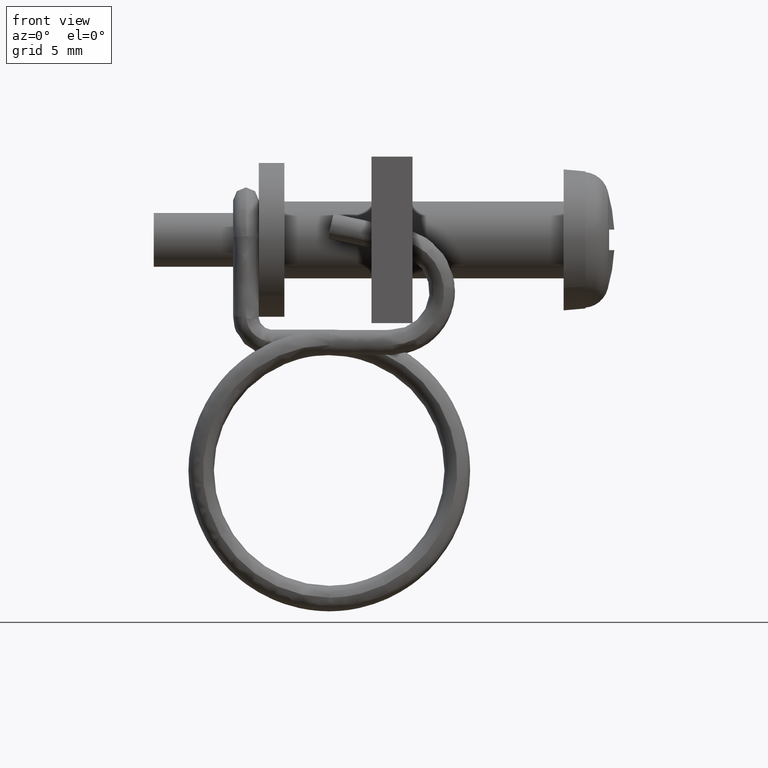
[diagram: clean part render]
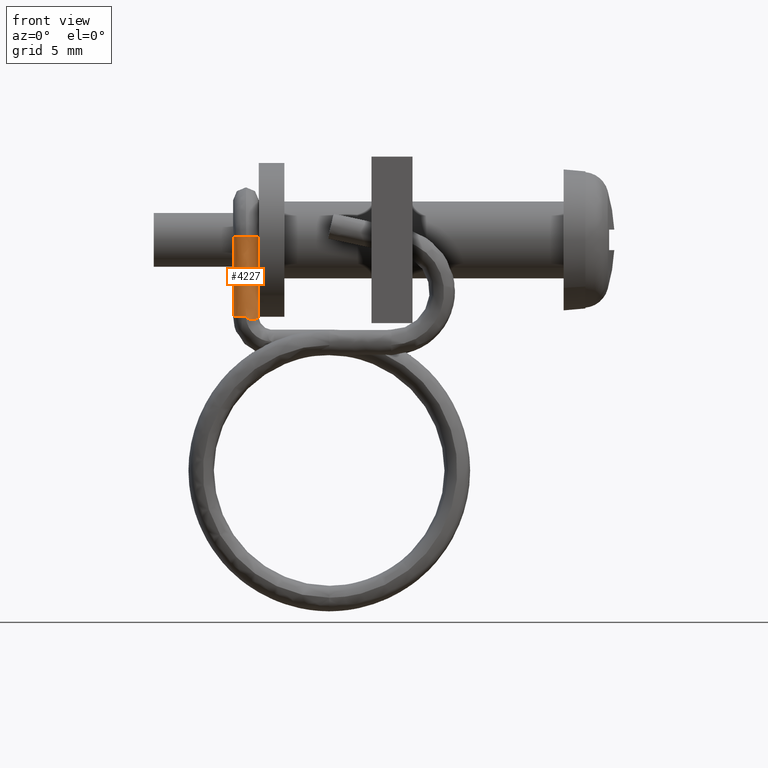
[diagram: same view with one face highlighted and labeled with its STEP entity id]
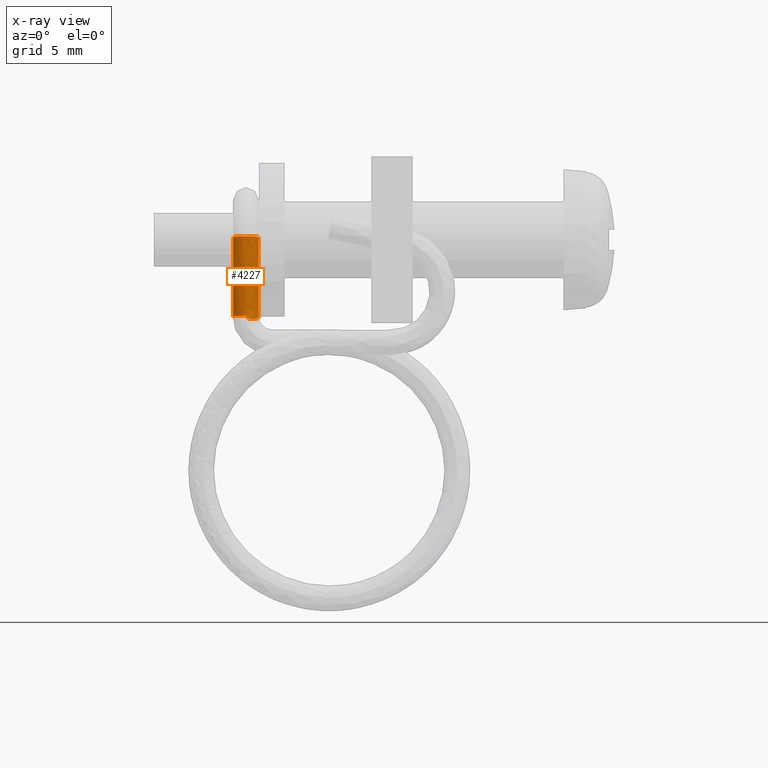
[diagram: x-ray of the same camera — body ghosted, the highlighted face saturated]
A machine part, front view. The second image highlights one B-rep face of the part: STEP entity #4227.
The next image is the same camera in x-ray: the body ghosted, the highlighted face saturated — about 0% of this face is hidden behind the body in this view.
In plain terms, the highlighted face is a freeform B-spline surface patch.
Its self-contained STEP definition (entity closure, byte-faithful):
#3990=CARTESIAN_POINT('',(-12.400000000000061,-2.255212590016138,-2.966274765721647));
#3991=VERTEX_POINT('',#3990);
#3999=CARTESIAN_POINT('',(-12.898428017469801,-1.717213680971814,-3.002645874914204));
#4000=VERTEX_POINT('',#3999);
#4001=CARTESIAN_POINT('',(-12.898428017469801,-1.717213680971814,-3.002645874914204));
#4002=CARTESIAN_POINT('',(-12.899490998307670,-1.730226238667459,-3.001766168377877));
#4003=CARTESIAN_POINT('',(-12.900029903140069,-1.743283533527045,-3.000883437411115));
#4004=CARTESIAN_POINT('',(-12.900025487912320,-1.886950790790790,-2.991170894479352));
#4005=CARTESIAN_POINT('',(-12.846133423544600,-2.016748602856648,-2.982395987474451));
#4006=CARTESIAN_POINT('',(-12.661002378437400,-2.201448025655147,-2.969909488410095));
#4007=CARTESIAN_POINT('',(-12.530903403704080,-2.255212288239596,-2.966274786123078));
#4008=CARTESIAN_POINT('',(-12.400000000000061,-2.255212590016138,-2.966274765721647));
#4009=B_SPLINE_CURVE_WITH_KNOTS('',3,(#4001,#4002,#4003,#4004,#4005,#4006,#4007,#4008),.UNSPECIFIED.,.F.,.U.,(4,2,2,4),(0.737495067605086,0.750000000000000,0.875000000000000,1.0),.UNSPECIFIED.);
#4010=EDGE_CURVE('',#4000,#3991,#4009,.T.);
#4058=CARTESIAN_POINT('',(-11.901542327207100,-1.796646695404419,-3.014442898002632));
#4059=VERTEX_POINT('',#4058);
#4112=CARTESIAN_POINT('',(-12.400000000000061,-2.255212590016138,-2.966274765721647));
#4113=CARTESIAN_POINT('',(-12.399559505295059,-2.255264366724075,-2.967250956933395));
#4114=CARTESIAN_POINT('',(-12.398472005521560,-2.255320077089648,-2.968450455974268));
#4115=CARTESIAN_POINT('',(-12.396699739107950,-2.255367138219553,-2.969628760818345));
#4116=CARTESIAN_POINT('',(-12.395427890780249,-2.255408096405551,-2.970614853209979));
#4117=CARTESIAN_POINT('',(-12.393121971098839,-2.255464605705021,-2.972011030906005));
#4118=CARTESIAN_POINT('',(-12.389994344652891,-2.255548690188221,-2.974035702797210));
#4119=CARTESIAN_POINT('',(-12.386865708185940,-2.255616060839329,-2.975832662265289));
#4120=CARTESIAN_POINT('',(-12.384926047135121,-2.255711780945110,-2.977626738496096));
#4121=CARTESIAN_POINT('',(-12.383752593309600,-2.255768088911905,-2.978699702419232));
#4122=CARTESIAN_POINT('',(-12.383163603722730,-2.255859068561584,-2.980086419628931));
#4123=CARTESIAN_POINT('',(-12.383391765640649,-2.255951307747503,-2.981274174550299));
#4124=CARTESIAN_POINT('',(-12.383149202719011,-2.256012284714630,-2.982319238994108));
#4125=CARTESIAN_POINT('',(-12.383042970334690,-2.256099818706835,-2.983659498014770));
#4126=CARTESIAN_POINT('',(-12.382443827748080,-2.256243734482273,-2.986123080126318));
#4127=CARTESIAN_POINT('',(-12.381928605517460,-2.256438729993266,-2.989277496765036));
#4128=CARTESIAN_POINT('',(-12.380786612259540,-2.256672404807315,-2.993385369518880));
#4129=CARTESIAN_POINT('',(-12.379817148647181,-2.256839988547037,-2.996430004235559));
#4130=CARTESIAN_POINT('',(-12.377783786132751,-2.256969030955309,-2.999582523007287));
#4131=CARTESIAN_POINT('',(-12.377187128281060,-2.257125925519575,-3.002181191150774));
#4132=CARTESIAN_POINT('',(-12.376440751363409,-2.257303847049613,-3.005276020464194));
#4133=CARTESIAN_POINT('',(-12.375200583587370,-2.257641473782988,-3.010963517340380));
#4134=CARTESIAN_POINT('',(-12.372741498670290,-2.257907022173704,-3.017027082810682));
#4135=CARTESIAN_POINT('',(-12.368189848699799,-2.257937027339775,-3.021609255604349));
#4136=CARTESIAN_POINT('',(-12.364229755358680,-2.257934649743609,-3.025164136022330));
#4137=CARTESIAN_POINT('',(-12.360908342452401,-2.257985643810908,-3.029339654955081));
#4138=CARTESIAN_POINT('',(-12.356879866463441,-2.257979281455772,-3.034298375425776));
#4139=CARTESIAN_POINT('',(-12.351619415402990,-2.258007110705806,-3.040952271562277));
#4140=CARTESIAN_POINT('',(-12.345649421639999,-2.257775704296158,-3.047157926415793));
#4141=CARTESIAN_POINT('',(-12.338452191831710,-2.257190220648363,-3.051721386548776));
#4142=CARTESIAN_POINT('',(-12.329673649174270,-2.256297222648826,-3.055474221500500));
#4143=CARTESIAN_POINT('',(-12.320402381105490,-2.255214481627882,-3.060610137107141));
#4144=CARTESIAN_POINT('',(-12.307465013355159,-2.253482705754498,-3.067755778889889));
#4145=CARTESIAN_POINT('',(-12.298128580885940,-2.251943642309179,-3.072677652936332));
#4146=CARTESIAN_POINT('',(-12.274676886653010,-2.247312533393274,-3.081686189598646));
#4147=CARTESIAN_POINT('',(-12.228847011431760,-2.235373882530940,-3.094741503872013));
#4148=CARTESIAN_POINT('',(-12.181791994650920,-2.215177920448990,-3.100215187130627));
#4149=CARTESIAN_POINT('',(-12.126227302656620,-2.183833971101977,-3.102148916061165));
#4150=CARTESIAN_POINT('',(-12.053227499221780,-2.131451288539396,-3.098679724799900));
#4151=CARTESIAN_POINT('',(-11.996135899501800,-2.062584611353187,-3.083609700357973));
#4152=CARTESIAN_POINT('',(-11.944306018176849,-1.972254367216960,-3.061962361514168));
#4153=CARTESIAN_POINT('',(-11.918528333330130,-1.906176904501774,-3.044812135326338));
#4154=CARTESIAN_POINT('',(-11.905056201410490,-1.833439408050648,-3.024511647602927));
#4155=CARTESIAN_POINT('',(-11.902182716009220,-1.804859386958295,-3.016587991939080));
#4156=CARTESIAN_POINT('',(-11.901542327207100,-1.796646695404419,-3.014442898002632));
#4157=B_SPLINE_CURVE_WITH_KNOTS('',3,(#4112,#4113,#4114,#4115,#4116,#4117,#4118,#4119,#4120,#4121,#4122,#4123,#4124,#4125,#4126,#4127,#4128,#4129,#4130,#4131,#4132,#4133,#4134,#4135,#4136,#4137,#4138,#4139,#4140,#4141,#4142,#4143,#4144,#4145,#4146,#4147,#4148,#4149,#4150,#4151,#4152,#4153,#4154,#4155,#4156),.UNSPECIFIED.,.F.,.U.,(4,1,1,1,1,1,1,1,1,1,1,1,1,1,1,1,1,1,1,1,1,1,1,1,1,1,1,1,1,1,1,1,1,1,1,1,1,1,1,1,1,1,4),(0.000118428472024,0.003284245495574,0.004887371885628,0.006490498275682,0.008110219634176,0.012969383709660,0.017682289365131,0.018888043953855,0.020872467638160,0.022457883264915,0.023197163260060,0.024419085432730,0.025641007605402,0.027237577561724,0.032027287430688,0.035234651909062,0.040044528041917,0.041586098015822,0.046373048083600,0.047971165020449,0.051167398894149,0.063928412611228,0.067119850870279,0.070316035363635,0.079891274619734,0.083085887940729,0.089475114582724,0.105433158121836,0.108624495482898,0.115011669931495,0.134161369556440,0.140544846317212,0.159693558926176,0.166075531709595,0.217143753654655,0.306512506360167,0.319280156940072,0.408644003254431,0.574611656233970,0.587378017073387,0.727809235708906,0.791639010101009,0.817174597876138),.UNSPECIFIED.);
#4158=EDGE_CURVE('',#3991,#4059,#4157,.T.);
#4166=CARTESIAN_POINT('',(-11.900304594884799,-1.788041155908776,-3.210049614143621));
#4167=CARTESIAN_POINT('',(-11.900304594884799,-1.558276237196533,0.188617029466380));
#4168=CARTESIAN_POINT('',(-11.918854231467158,-2.318023292608535,-3.174220474269986));
#4169=CARTESIAN_POINT('',(-11.918854231467163,-2.088258373896293,0.224446169340015));
#4170=CARTESIAN_POINT('',(-12.447922883682560,-2.267195785116568,-3.177656638905078));
#4171=CARTESIAN_POINT('',(-12.447922883682560,-2.037430866404326,0.221010004704923));
#4172=CARTESIAN_POINT('',(-12.976991535897955,-2.216368277624605,-3.181092803540170));
#4173=CARTESIAN_POINT('',(-12.976991535897961,-1.986603358912360,0.217573840069831));
#4174=CARTESIAN_POINT('',(-12.893844162252741,-1.692592031126010,-3.216502397748657));
#4175=CARTESIAN_POINT('',(-12.893844162252750,-1.462827112413764,0.182164245861343));
#4183=(BOUNDED_SURFACE()B_SPLINE_SURFACE(1,2,((#4166,#4168,#4170,#4172,#4174),(#4167,#4169,#4171,#4173,#4175)),.UNSPECIFIED.,.F.,.F.,.U.)B_SPLINE_SURFACE_WITH_KNOTS((2,2),(3,2,3),(0.0,3.406424352933456),(0.0,1.0,2.0),.UNSPECIFIED.)GEOMETRIC_REPRESENTATION_ITEM()RATIONAL_B_SPLINE_SURFACE(((1.0,0.685182990326359,1.0,0.685182990326359,1.0),(1.0,0.685182990326359,1.0,0.685182990326359,1.0)))REPRESENTATION_ITEM('')SURFACE());
#4184=ORIENTED_EDGE('',*,*,#4158,.T.);
#4185=CARTESIAN_POINT('',(-11.901541333137290,-1.585610464731164,0.107191464643700));
#4186=VERTEX_POINT('',#4185);
#4187=CARTESIAN_POINT('',(-11.901541333137290,-1.585610464731164,0.107191464643700));
#4188=CARTESIAN_POINT('',(-11.901542327207100,-1.796646695404419,-3.014442898002632));
#4189=QUASI_UNIFORM_CURVE('',1,(#4187,#4188),.UNSPECIFIED.,.F.,.U.);
#4190=EDGE_CURVE('',#4186,#4059,#4189,.T.);
#4191=ORIENTED_EDGE('',*,*,#4190,.F.);
#4192=CARTESIAN_POINT('',(-12.400000000000000,-2.045331693525463,0.138268808622238));
#4193=VERTEX_POINT('',#4192);
#4194=CARTESIAN_POINT('',(-12.400000000000000,-2.045331693525463,0.138268808622238));
#4195=CARTESIAN_POINT('',(-12.361139777090720,-2.045339361072593,0.138269326951574));
#4196=CARTESIAN_POINT('',(-12.283422662226659,-2.036243391905900,0.137654435698123));
#4197=CARTESIAN_POINT('',(-12.154754896305890,-1.989462252661021,0.134492011461518));
#4198=CARTESIAN_POINT('',(-12.034592854675900,-1.899985270573512,0.128443330703860));
#4199=CARTESIAN_POINT('',(-11.936494815482520,-1.757851739971654,0.118835045628614));
#4200=CARTESIAN_POINT('',(-11.906365389818880,-1.647464673943676,0.111372834604054));
#4201=CARTESIAN_POINT('',(-11.901541333137290,-1.585610464731164,0.107191464643700));
#4202=B_SPLINE_CURVE_WITH_KNOTS('',3,(#4194,#4195,#4196,#4197,#4198,#4199,#4200,#4201),.UNSPECIFIED.,.F.,.U.,(4,1,1,1,1,4),(0.000000040524518,0.116581710063658,0.233173159147096,0.408040307113835,0.559608879770373,0.746145153359667),.UNSPECIFIED.);
#4203=EDGE_CURVE('',#4193,#4186,#4202,.T.);
#4204=ORIENTED_EDGE('',*,*,#4203,.F.);
#4205=CARTESIAN_POINT('',(-12.898458666863140,-1.507330028610224,0.101899674994349));
#4206=VERTEX_POINT('',#4205);
#4207=CARTESIAN_POINT('',(-12.898458666863140,-1.507330028610224,0.101899674994349));
#4208=CARTESIAN_POINT('',(-12.903585539817820,-1.571419426907750,0.106232144655351));
#4209=CARTESIAN_POINT('',(-12.891944895630900,-1.671145574072951,0.112973673183924));
#4210=CARTESIAN_POINT('',(-12.834992505910060,-1.801470076863320,0.121783663126460));
#4211=CARTESIAN_POINT('',(-12.757098036249159,-1.905226127110503,0.128797614759372));
#4212=CARTESIAN_POINT('',(-12.652837971896901,-1.983363442307287,0.134079729375437));
#4213=CARTESIAN_POINT('',(-12.528843095165429,-2.033699737857020,0.137482483639161));
#4214=CARTESIAN_POINT('',(-12.447247425563249,-2.045350002029447,0.138270046284630));
#4215=CARTESIAN_POINT('',(-12.400000000000000,-2.045331693525463,0.138268808622238));
#4216=B_SPLINE_CURVE_WITH_KNOTS('',3,(#4207,#4208,#4209,#4210,#4211,#4212,#4213,#4214,#4215),.UNSPECIFIED.,.F.,.U.,(4,1,1,1,1,1,4),(0.000000044008987,0.193286183774469,0.296378184122114,0.425226079676964,0.579860723206602,0.682950544784501,0.824690886441822),.UNSPECIFIED.);
#4217=EDGE_CURVE('',#4206,#4193,#4216,.T.);
#4218=ORIENTED_EDGE('',*,*,#4217,.F.);
#4219=CARTESIAN_POINT('',(-12.898458666863140,-1.507330028610224,0.101899674994349));
#4220=CARTESIAN_POINT('',(-12.898428017469801,-1.717213680971814,-3.002645874914204));
#4221=QUASI_UNIFORM_CURVE('',1,(#4219,#4220),.UNSPECIFIED.,.F.,.U.);
#4222=EDGE_CURVE('',#4206,#4000,#4221,.T.);
#4223=ORIENTED_EDGE('',*,*,#4222,.T.);
#4224=ORIENTED_EDGE('',*,*,#4010,.T.);
#4225=EDGE_LOOP('',(#4184,#4191,#4204,#4218,#4223,#4224));
#4226=FACE_OUTER_BOUND('',#4225,.T.);
#4227=ADVANCED_FACE('',(#4226),#4183,.T.);